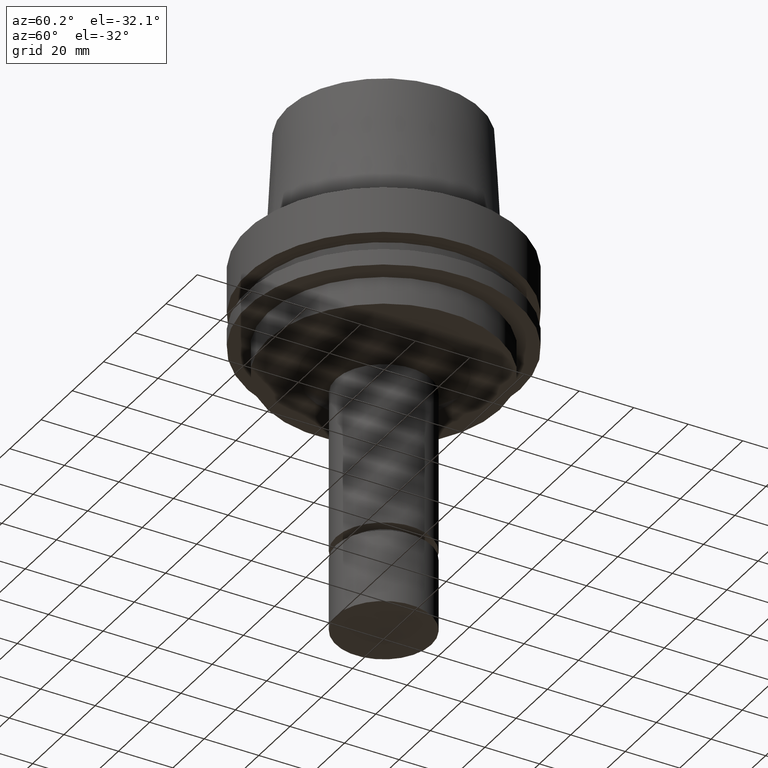
[diagram: clean part render]
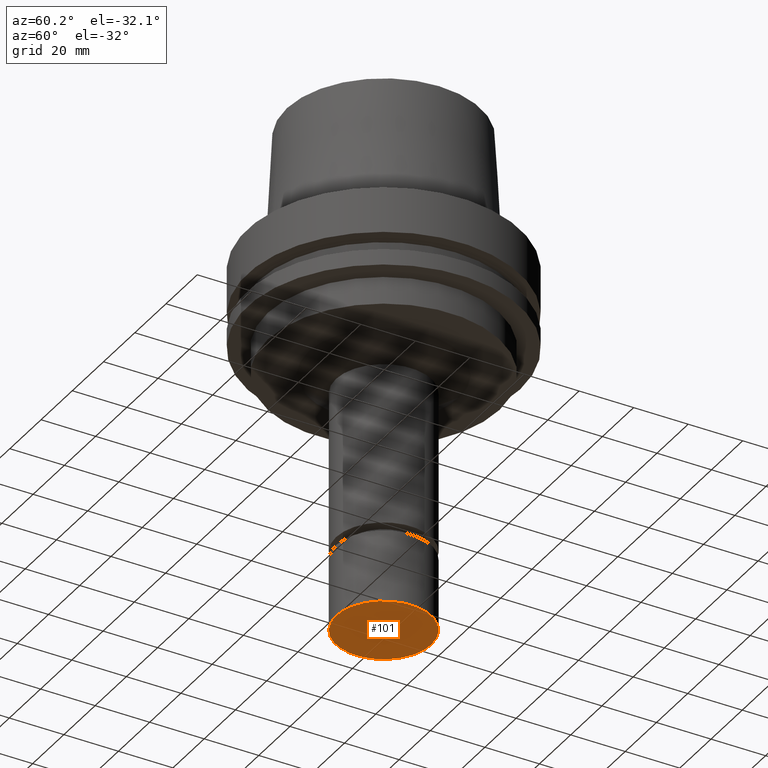
[diagram: same view with one face highlighted and labeled with its STEP entity id]
A machine part, auxiliary view. The second image highlights one B-rep face of the part: STEP entity #101.
In plain terms, the highlighted planar face has unit normal (0, 0, -1).
Its self-contained STEP definition (entity closure, byte-faithful):
#101=ADVANCED_FACE('Unnamed[1]',(#252),#253,.T.);
#119=EDGE_CURVE('Unnamed[1]',#281,#281,#282,.T.);
#252=FACE_OUTER_BOUND('',#460,.T.);
#253=PLANE('',#461);
#281=VERTEX_POINT('',#496);
#282=CIRCLE('',#497,17.5);
#460=EDGE_LOOP('',(#688));
#461=AXIS2_PLACEMENT_3D('',#689,#690,#691);
#496=CARTESIAN_POINT('',(8.26636589424462E-015,17.5,-135.0));
#497=AXIS2_PLACEMENT_3D('',#722,#723,#724);
#688=ORIENTED_EDGE('',*,*,#119,.T.);
#689=CARTESIAN_POINT('',(8.26636589424462E-015,8.75000000000002,-135.0));
#690=DIRECTION('',(6.12323399573677E-017,1.22464679914735E-016,-1.0));
#691=DIRECTION('',(-1.23259516440783E-032,1.0,1.22464679914735E-016));
#722=CARTESIAN_POINT('',(8.26636589424462E-015,1.65327317884892E-014,-135.0));
#723=DIRECTION('',(6.12323399573677E-017,1.22464679914735E-016,-1.0));
#724=DIRECTION('',(-1.23259516440783E-032,1.0,1.22464679914735E-016));